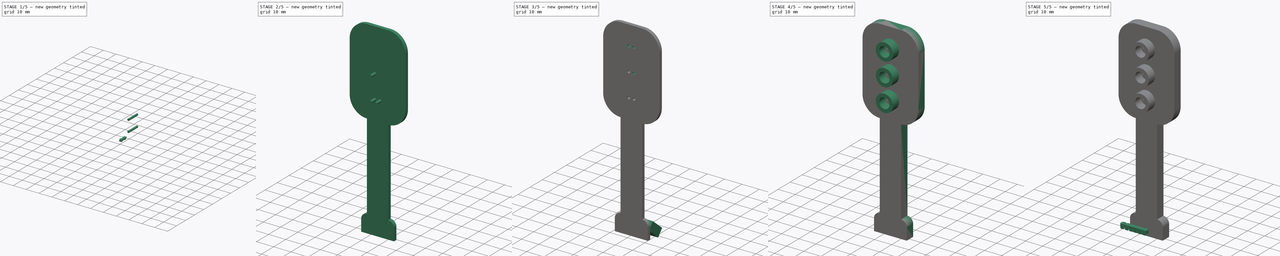
[diagram: build sequence overview — one tinted view per stage of 5, left to right]
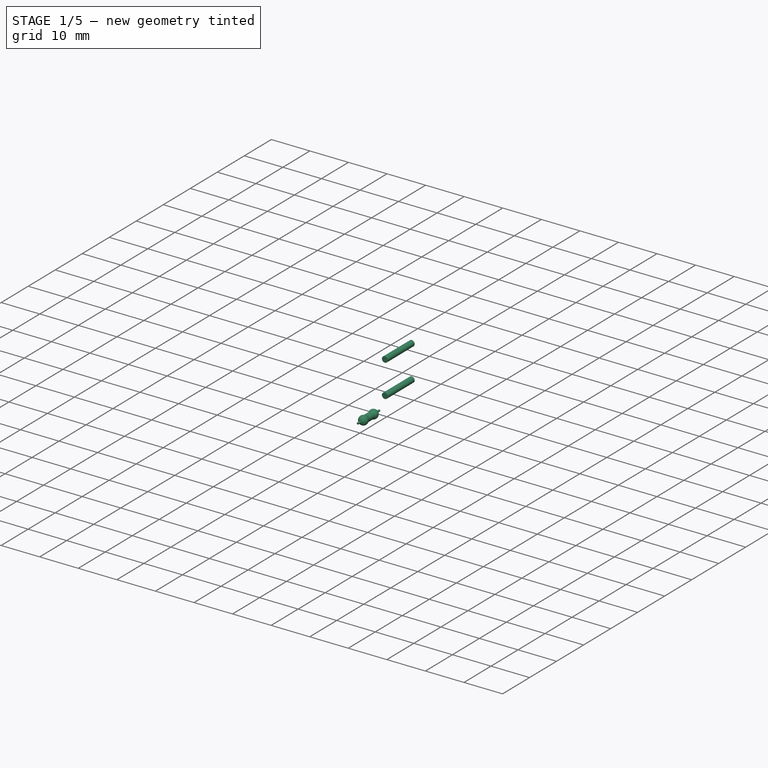
[diagram: stage 1 of 5 — iso view after this stage's code; geometry added in this stage tinted green]
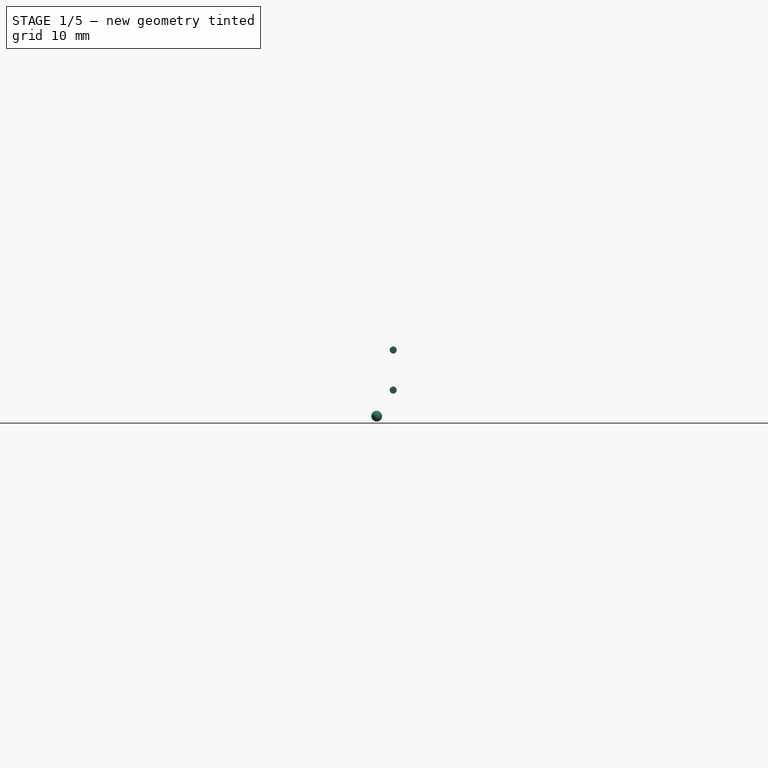
[diagram: stage 1 of 5 — front view after this stage's code; geometry added in this stage tinted green]
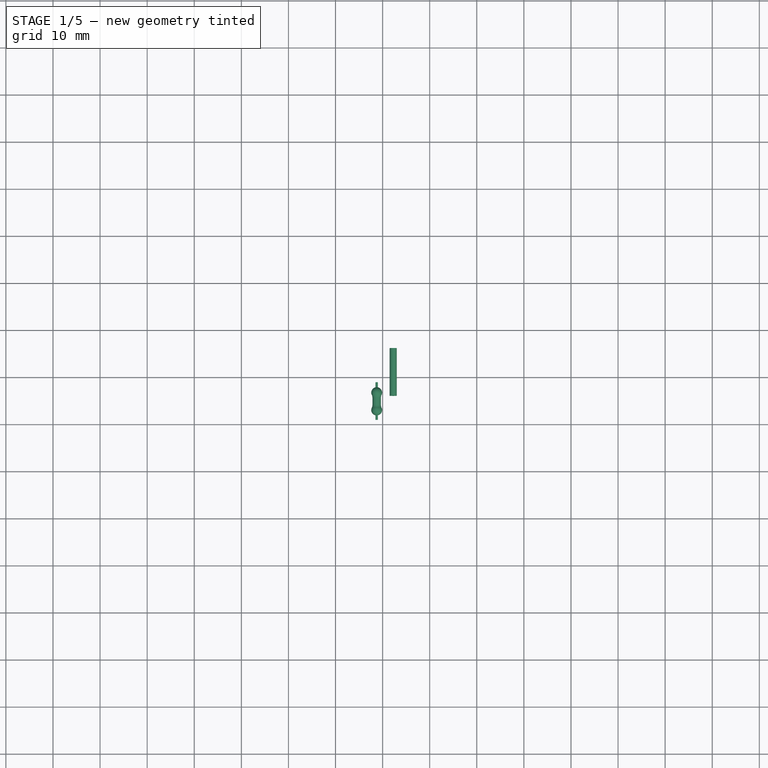
[diagram: stage 1 of 5 — top view after this stage's code; geometry added in this stage tinted green]
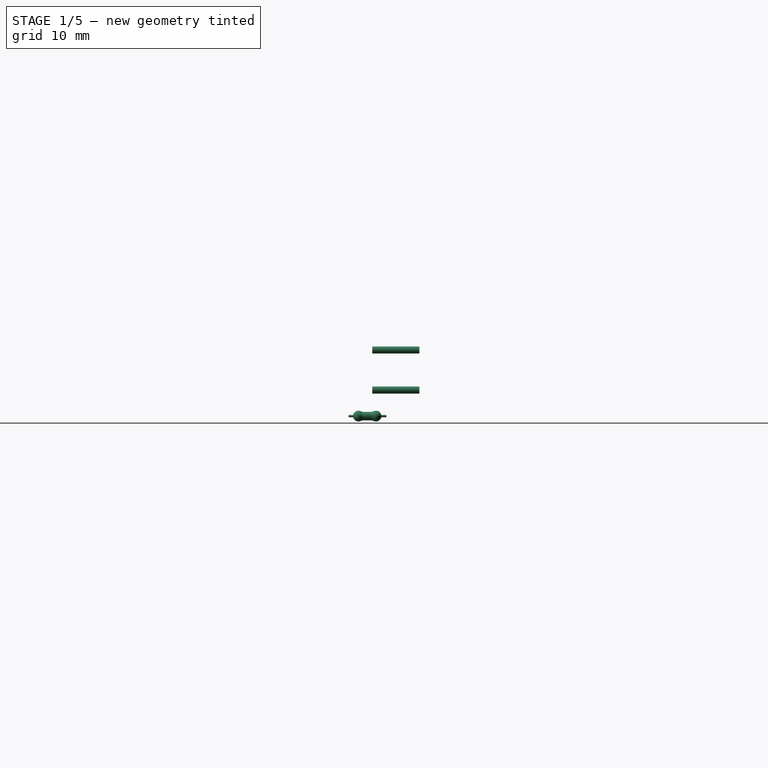
[diagram: stage 1 of 5 — right view after this stage's code; geometry added in this stage tinted green]
FCSTD DOCUMENT  (FreeCAD 0.18R16131 (Git))
Label: Semaforo
License: Public Domain
LicenseURL: http://en.wikipedia.org/wiki/Public_domain
objects: Part::Feature×19, Part::Part2DObjectPython×15, Part::Cut×8, Part::Extrusion×8, Part::MultiFuse×7, App::DocumentObjectGroup×7, Part::Box×3, Sketcher::SketchObject×2, PartDesign::Pad×2, PartDesign::Body×2, Part::Cylinder×2
note: 70 computed .brp shape members not serialized (recipe doc carries the construction recipe); baked Part::Feature solids carry a one-line shape summary decoded from their .brp

FEATURE [Part::Feature] Fusion016004001001003003001  label="Cuerpo con agujeros resistencia"
  shape: bbox 32.4 x 10.3 x 109.8 mm, 129 faces (baked)
FEATURE [Part::Feature] Body002004  label="Led ambar"
  Placement = pos=(6,-5,84.7) rot=(0,0,1;3.14159rad)
  shape: bbox 5.425 x 8.65 x 5.85 mm, 7 faces (baked)
FEATURE [Part::Feature] Body002005  label="Led verde"
  Placement = pos=(6,-5,71.3) rot=(0,0,1;3.14159rad)
  shape: bbox 5.425 x 8.65 x 5.85 mm, 7 faces (baked)
FEATURE [App::DocumentObjectGroup] Group005  label="Led"
  Group = -> [Body002001,Body002004,Body002005]
FEATURE [Part::Extrusion] Extrude003
  Base = -> Circle003
  Dir = (0,1,0)
  DirMode = 2
  FaceMakerClass = Part::FaceMakerBullseye
  LengthFwd = 10
  LengthRev = 0
  Placement = pos=(0,-9,0) rot=(0,0,1;0rad)
  Solid = false
  Symmetric = false
FEATURE [Part::Extrusion] Extrude002
  Base = -> Circle
  Dir = (0,1,0)
  DirMode = 2
  FaceMakerClass = Part::FaceMakerBullseye
  LengthFwd = 10
  LengthRev = 0
  Placement = pos=(0,-9,0) rot=(0,0,1;0rad)
  Solid = false
  Symmetric = false
FEATURE [App::DocumentObjectGroup] Group011  label="Cuerpo semaforo"
  Group = -> [Cut016,Fusion016004001001003003002]
FEATURE [Part::Feature] Fusion016004001001003003002001  label="cuerpo semaforo"
  shape: bbox 32.4 x 10.3 x 109.8 mm, 127 faces (baked)
FEATURE [Part::Box] Box  label="Cubo"
  AttacherType = Attacher::AttachEngine3D
  Height = 10
  Length = 10
  Placement = pos=(-4,9,0) rot=(0,0,1;0rad)
  Width = 10
FEATURE [Part::Box] Box010  label="Cubo010"
  AttacherType = Attacher::AttachEngine3D
  Height = 10
  Length = 10
  Placement = pos=(-4,-9,0) rot=(0,0,1;0rad)
  Width = 10
FEATURE [Part::MultiFuse] Fusion016004001001003003002002
  Refine = true
  Shapes = -> [Box,Box010]
FEATURE [Part::Cut] Cut
  Base = -> Fusion013001
  Refine = true
  Tool = -> Fusion016004001001003003002002
FEATURE [App::DocumentObjectGroup] Group  label="resistencia"
  Group = -> [Fusion014001,Cut]
FEATURE [App::DocumentObjectGroup] Group009  label="src"
  Group = -> [Group010,Group008,Group011,Group]
FEATURE [Part::Feature] Cut016004  label="Cuerpo Resistencia"
  Placement = pos=(3.5,4,10) rot=(1,0,0;1.5708rad)
  shape: bbox 2.3 x 2.3 x 8.02 mm, 9 faces (baked)
FEATURE [Part::Feature] Fusion014001001  label="Anillos resistencia"
  Placement = pos=(3.5,4,10) rot=(1,0,0;1.5708rad)
  shape: bbox 2.233 x 2.233 x 3.032 mm, 16 faces, 4 solids (baked)
FEATURE [App::DocumentObjectGroup] Group012  label="Resistencia"
  Group = -> [Cut016004,Fusion014001001]
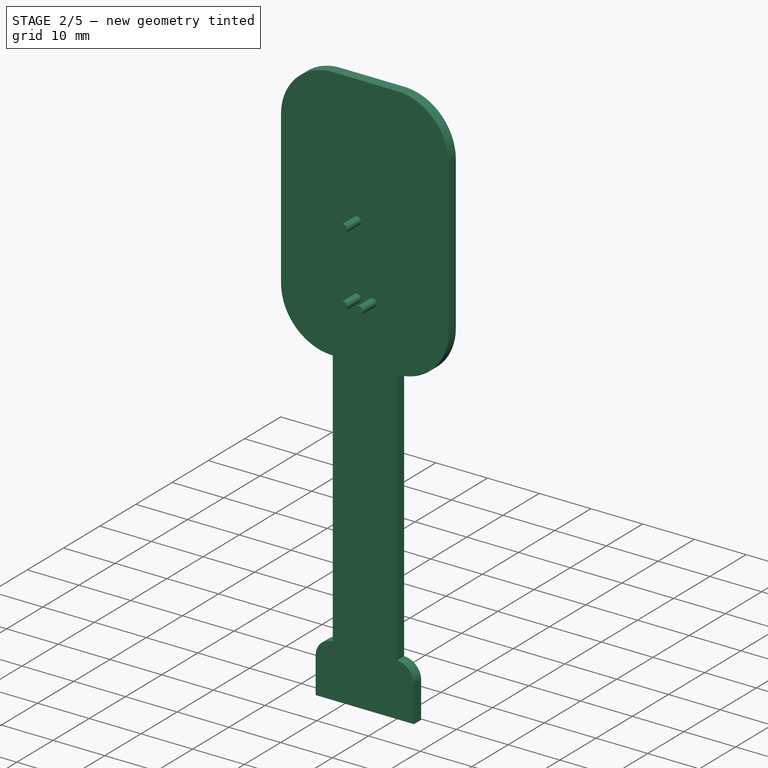
[diagram: stage 2 of 5 — iso view after this stage's code; geometry added in this stage tinted green]
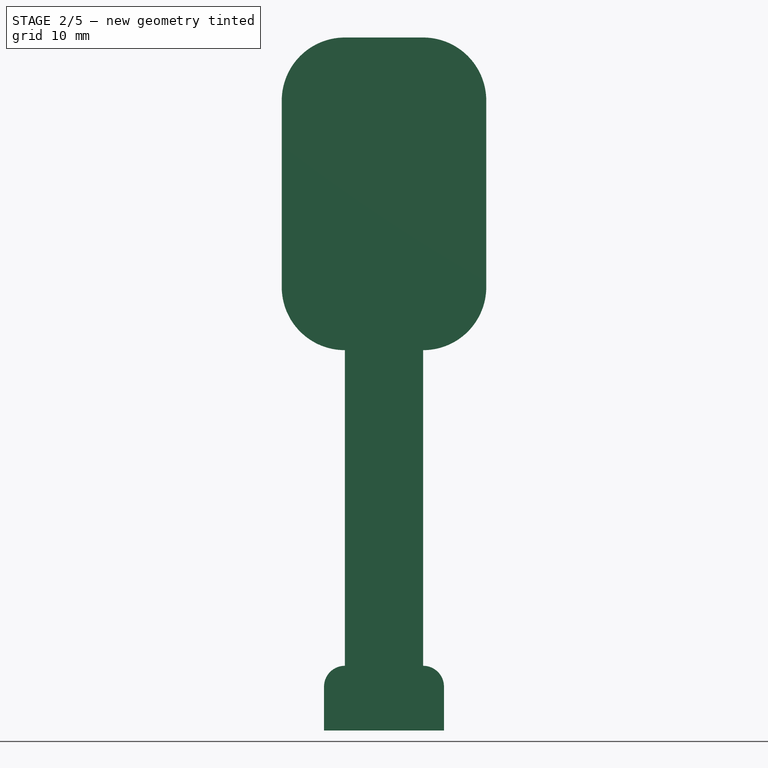
[diagram: stage 2 of 5 — front view after this stage's code; geometry added in this stage tinted green]
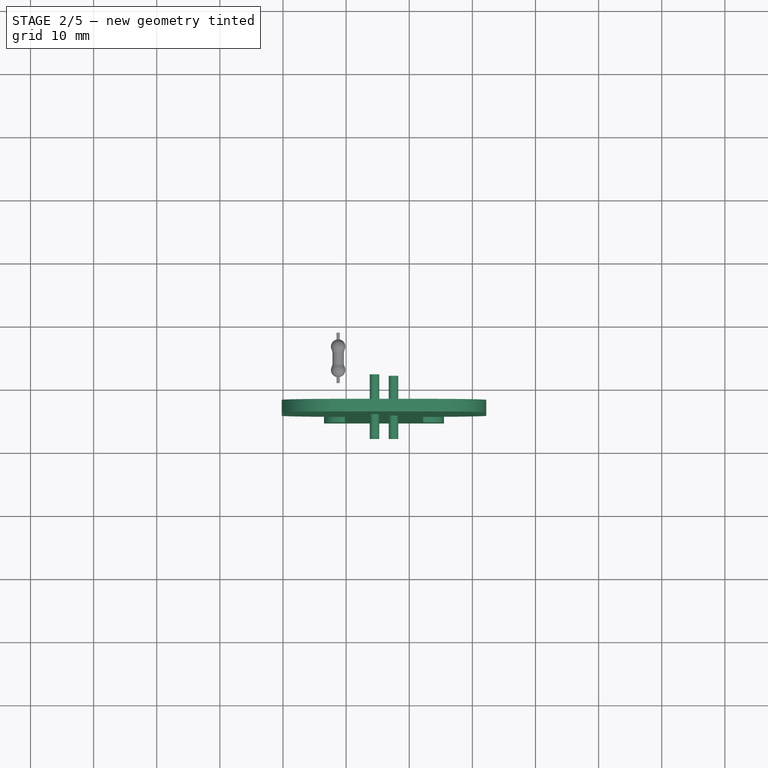
[diagram: stage 2 of 5 — top view after this stage's code; geometry added in this stage tinted green]
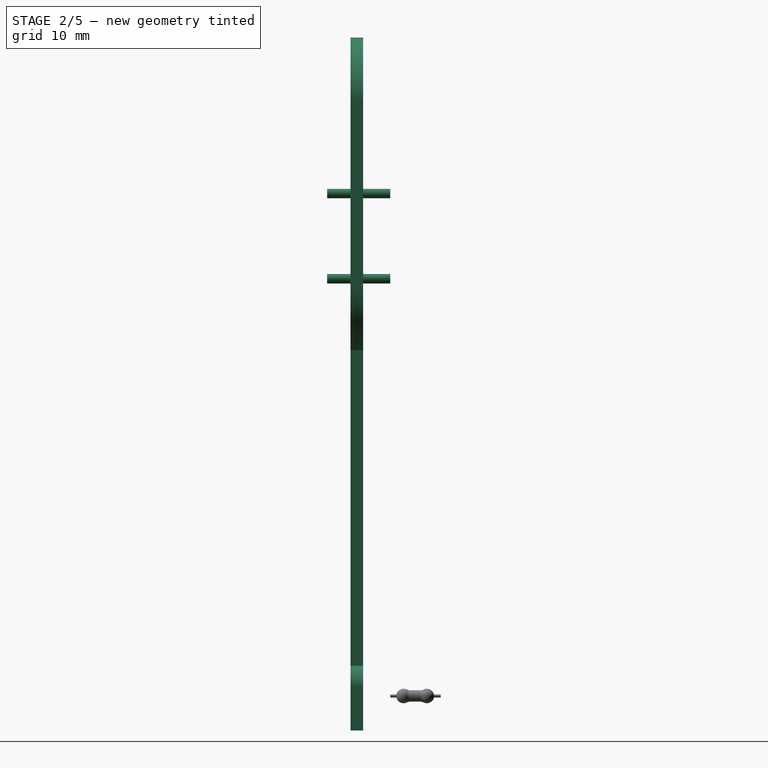
[diagram: stage 2 of 5 — right view after this stage's code; geometry added in this stage tinted green]
FEATURE [PartDesign::Body] Body002002  label="Trasera"
  Group = -> [Sketch023,Pad002]
  Origin = -> Origin001
  Tip = -> Pad002
FEATURE [Sketcher::SketchObject] Sketch024  label="Sketch circuitos001"
  AttachmentOffset = pos=(1,0,6) rot=(1,0,0;1.5708rad)
  MapMode = 5
  Placement = pos=(1,0,6) rot=(1,0,0;1.5708rad)
  Support = -> [XY_Plane002]
  sketch-geometry (15):
    g0: LineSegment StartX=14.5 StartY=0.7 StartZ=0 EndX=14.5 EndY=-6.25 EndZ=0
    g1: LineSegment StartX=14.5 StartY=-6.25 StartZ=0 EndX=-4.5 EndY=-6.25 EndZ=0
    g2: LineSegment StartX=-4.5 StartY=-6.25 StartZ=0 EndX=-4.5 EndY=0.7 EndZ=0
    g3: ArcOfCircle CenterX=-1.2 CenterY=0.7 CenterZ=0 NormalX=0 NormalY=0 NormalZ=1 AngleXU=0 Radius=3.3 StartAngle=1.5708 EndAngle=3.14159
    g4: ArcOfCircle CenterX=11.2 CenterY=0.7 CenterZ=0 NormalX=0 NormalY=0 NormalZ=1 AngleXU=0 Radius=3.3 StartAngle=0 EndAngle=1.5708
    g5: LineSegment StartX=-1.2 StartY=4 StartZ=0 EndX=-1.2 EndY=54 EndZ=0
    g6: LineSegment StartX=-1.2 StartY=103.53 StartZ=0 EndX=11.2 EndY=103.53 EndZ=0
    g7: LineSegment StartX=21.2 StartY=93.53 StartZ=0 EndX=21.2 EndY=64 EndZ=0
    g8: LineSegment StartX=-11.2 StartY=64 StartZ=0 EndX=-11.2 EndY=93.53 EndZ=0
    g9: ArcOfCircle CenterX=11.2 CenterY=93.53 CenterZ=0 NormalX=0 NormalY=0 NormalZ=1 AngleXU=0 Radius=10 StartAngle=0 EndAngle=1.5708
    g10: ArcOfCircle CenterX=-1.2 CenterY=93.53 CenterZ=0 NormalX=0 NormalY=0 NormalZ=1 AngleXU=0 Radius=10 StartAngle=1.5708 EndAngle=3.14159
    g11: ArcOfCircle CenterX=-1.2 CenterY=64 CenterZ=0 NormalX=0 NormalY=0 NormalZ=1 AngleXU=0 Radius=10 StartAngle=3.14159 EndAngle=4.71239
    g12: ArcOfCircle CenterX=11.2 CenterY=64 CenterZ=0 NormalX=0 NormalY=0 NormalZ=1 AngleXU=0 Radius=10 StartAngle=4.71239 EndAngle=6.28319
    g13: LineSegment [constr] StartX=-1.2 StartY=4 StartZ=0 EndX=11.2 EndY=4 EndZ=0
    g14: LineSegment StartX=11.2 StartY=54 StartZ=0 EndX=11.2 EndY=4 EndZ=0
  constraints (43):
    c: Coincident(g0,g1)
    c: Coincident(g1,g2)
    c: Vertical(g0)
    c: Vertical(g2)
    c: Horizontal(g1)
    c: DistanceX(g1,g0) = 19
    c: DistanceX(g1,g-1) = 4.5
    c: Coincident(g4,g13)
    c: Coincident(g5,g3)
    c: Coincident(g13,g3)
    c: Horizontal(g13)
    c: Perpendicular(g3,g5)
    c: Tangent(g0,g4) = 1.5708
    c: Tangent(g2,g3) = 1.5708
    c: Coincident(g14,g4)
    c: Vertical(g14)
    c: Vertical(g5)
    c: Perpendicular(g4,g14)
    c: DistanceY(g-1,g3) = 4
    c: Coincident(g12,g14)
    c: Vertical(g7)
    c: Coincident(g5,g11)
    c: Vertical(g8)
    c: Tangent(g8,g11) = 1.5708
    c: Horizontal(g6)
    c: Tangent(g6,g9) = 1.5708
    c: Tangent(g6,g10) = 1.5708
    c: Tangent(g8,g10) = 1.5708
    c: Tangent(g7,g9) = 1.5708
    c: DistanceY(g3,g5) = 50
    c: Radius(g10) = 10
    c: DistanceX(g11,g12) = 12.4
    c: DistanceY(g0,g4) = 10.25
    c: Equal(g7,g8)
    c: DistanceY(g7,g7) = 29.53
    c: Equal(g10,g9)
    c: Equal(g9,g12)
    c: Equal(g12,g11)
    c: Radius(g4) = 3.3
    c: Radius(g3) = 3.3
    c: DistanceX(g12,g7) = 10
    c: DistanceY(g12,g7) = 10
    c: Coincident(g7,g12)
FEATURE [PartDesign::Pad] Pad003
  Length = 2
  Length2 = 100
  Profile = -> Sketch024
  Refine = true
  Type = 0
FEATURE [Part::Extrusion] Extrude007
  Base = -> Circle007
  Dir = (3e-16,1,-5e-16)
  DirMode = 2
  FaceMakerClass = Part::FaceMakerBullseye
  LengthFwd = 10
  LengthRev = 0
  Placement = pos=(0,-9,0) rot=(0,0,1;0rad)
  Solid = true
  Symmetric = false
FEATURE [Part::Extrusion] Extrude008
  Base = -> Circle008
  Dir = (0,1,2e-16)
  DirMode = 2
  FaceMakerClass = Part::FaceMakerBullseye
  LengthFwd = 10
  LengthRev = 0
  Placement = pos=(0,-9,0) rot=(0,0,1;0rad)
  Solid = true
  Symmetric = false
FEATURE [Part::Extrusion] Extrude009
  Base = -> Circle009
  Dir = (0,1,2e-16)
  DirMode = 2
  FaceMakerClass = Part::FaceMakerBullseye
  LengthFwd = 10
  LengthRev = 0
  Placement = pos=(0,-9,0) rot=(0,0,1;0rad)
  Solid = true
  Symmetric = false
FEATURE [Part::Cut] Cut013
  Base = -> Body002003
  Refine = true
  Tool = -> Extrude002
FEATURE [Part::Cut] Cut014  label="agujeros resistencia"
  Base = -> Cut013
  Refine = true
  Tool = -> Extrude003
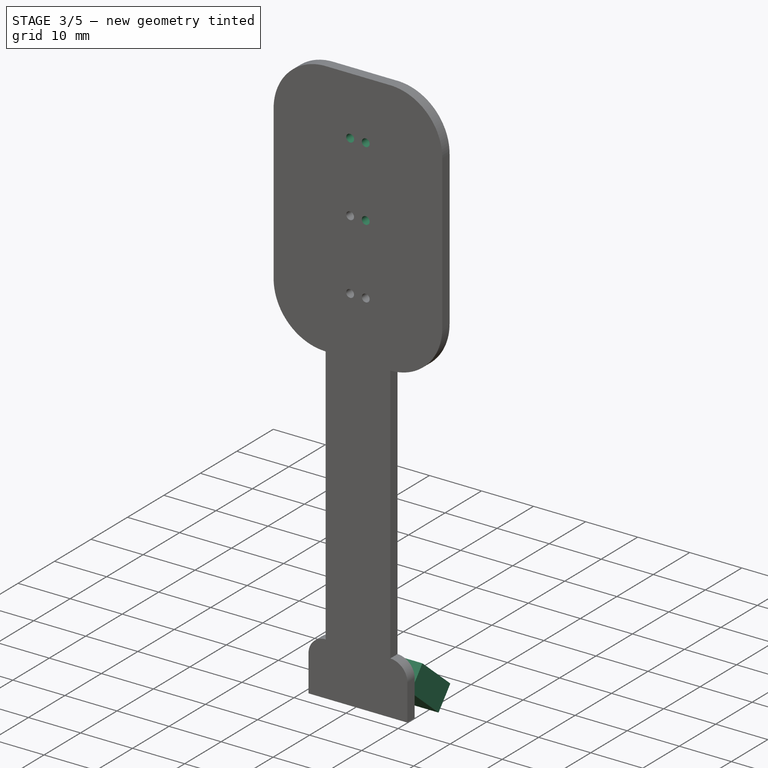
[diagram: stage 3 of 5 — iso view after this stage's code; geometry added in this stage tinted green]
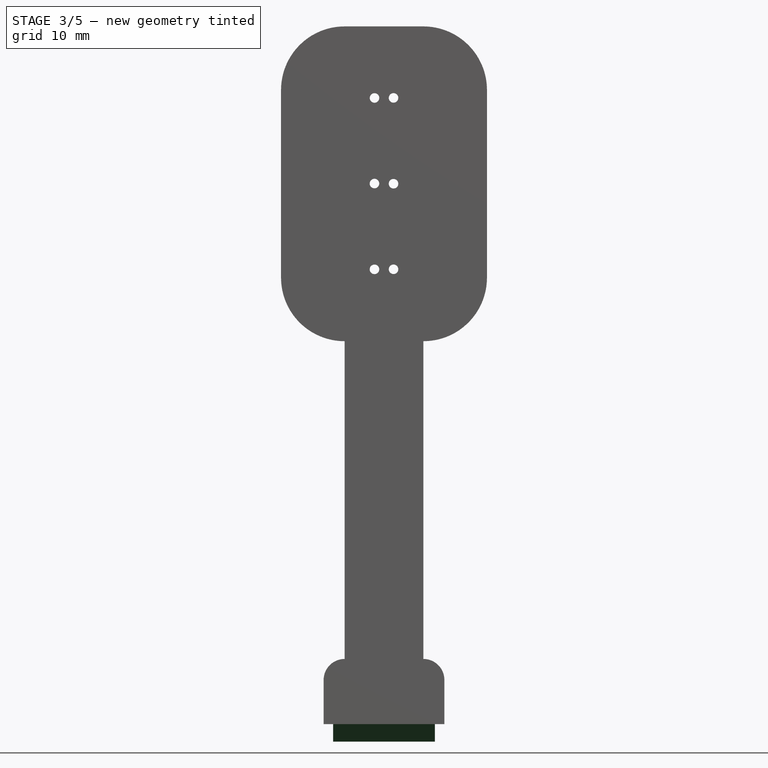
[diagram: stage 3 of 5 — front view after this stage's code; geometry added in this stage tinted green]
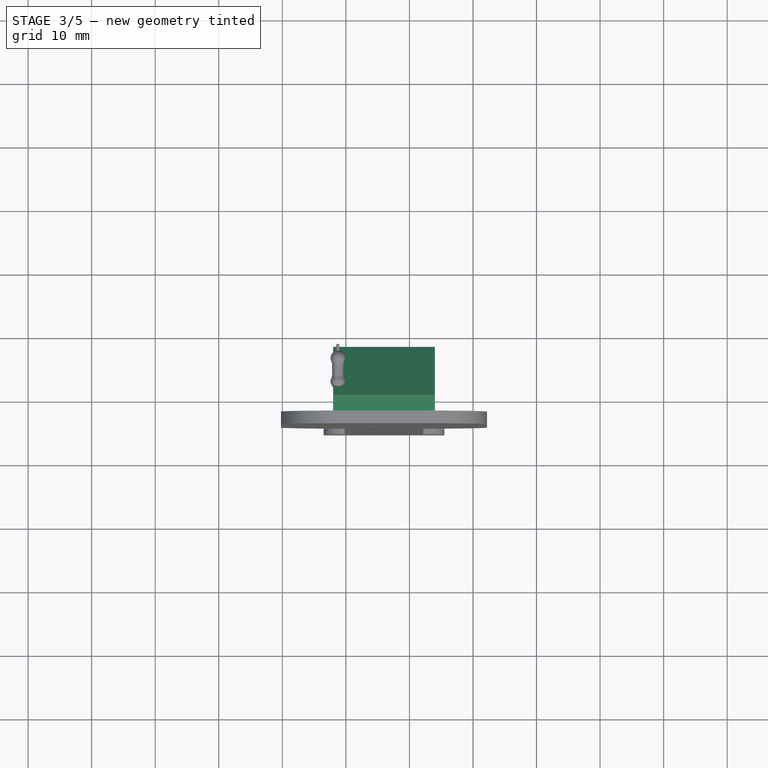
[diagram: stage 3 of 5 — top view after this stage's code; geometry added in this stage tinted green]
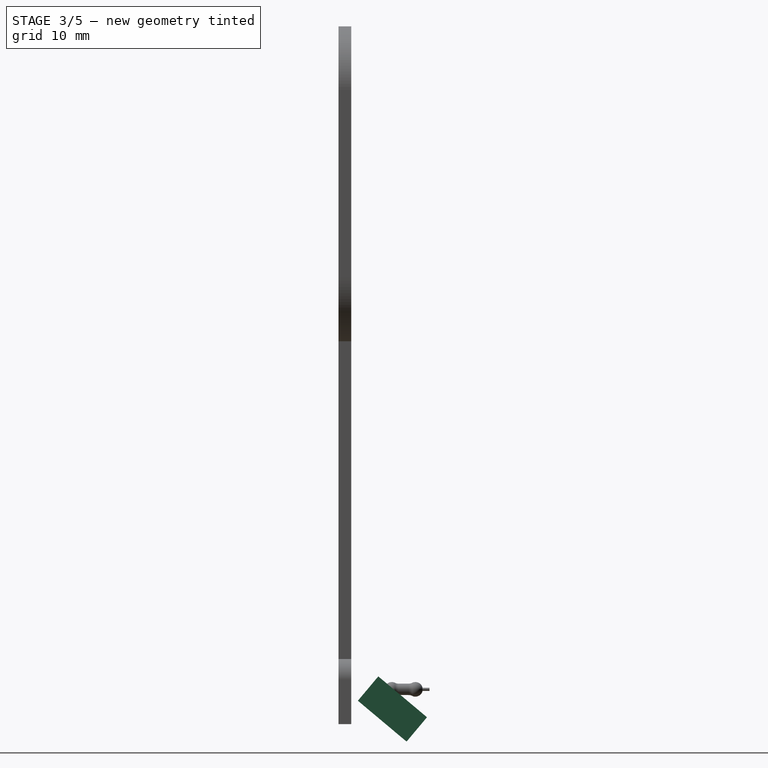
[diagram: stage 3 of 5 — right view after this stage's code; geometry added in this stage tinted green]
FEATURE [PartDesign::Body] Body002003  label="frontal"
  Group = -> [Sketch024,Pad003]
  Origin = -> Origin002
  Placement = pos=(0,-3.3,0) rot=(0,0,1;0rad)
  Tip = -> Pad003
FEATURE [Part::Box] Box009  label="Cubo009"
  AttacherType = Attacher::AttachEngine3D
  Height = 10
  Length = 16
  Placement = pos=(-2,5.4,-3) rot=(1,0,0;0.872665rad)
  Width = 5
FEATURE [Part::Part2DObjectPython] Circle004  # Draft 2D object (typed FeaturePython)
  FirstAngle = 0
  LastAngle = 0
  MakeFace = true
  Placement = pos=(7.5,-2.05e-14,98.28) rot=(-1,0,0;1.5708rad)
  Radius = 0.75
FEATURE [Part::Part2DObjectPython] Circle005  # Draft 2D object (typed FeaturePython)
  FirstAngle = 0
  LastAngle = 0
  MakeFace = true
  Placement = pos=(4.50708,-2e-14,98.2717) rot=(-1,0,0;1.5708rad)
  Radius = 0.75
FEATURE [Part::Part2DObjectPython] Circle006  # Draft 2D object (typed FeaturePython)
  FirstAngle = 0
  LastAngle = 0
  MakeFace = true
  Placement = pos=(7.5,-1.7e-14,84.78) rot=(-1,0,0;1.5708rad)
  Radius = 0.75
FEATURE [Part::Part2DObjectPython] Circle007  # Draft 2D object (typed FeaturePython)
  FirstAngle = 0
  LastAngle = 0
  MakeFace = true
  Placement = pos=(7.50082,-1.48e-14,71.3158) rot=(0,0.707107,0.707107;3.14159rad)
  Radius = 0.75
FEATURE [Part::Part2DObjectPython] Circle008  # Draft 2D object (typed FeaturePython)
  FirstAngle = 0
  LastAngle = 0
  MakeFace = true
  Placement = pos=(4.49942,-1.7e-14,84.807) rot=(-1,0,0;1.5708rad)
  Radius = 0.75
FEATURE [Part::Part2DObjectPython] Circle009  # Draft 2D object (typed FeaturePython)
  FirstAngle = 0
  LastAngle = 0
  MakeFace = true
  Placement = pos=(4.49942,-1.4e-14,71.307) rot=(-1,0,0;1.5708rad)
  Radius = 0.75
FEATURE [Part::Part2DObjectPython] Line008  # Draft 2D object (typed FeaturePython)
  ChamferSize = 0
  Closed = false
  End = (4.49942,-1.45e-14,71.307)
  FilletRadius = 0
  Length = 13.5
  MakeFace = true
  Placement = pos=(4.49942,-1.75e-14,84.807) rot=(-1,0,0;1.5708rad)
  Points = (2) [(0,0,0),(7.99361e-15,13.5,-3.15544e-30)]
  Start = (4.49942,-1.75e-14,84.807)
  Subdivisions = 0
FEATURE [Part::Extrusion] Extrude004
  Base = -> Circle004
  Dir = (0,1,2e-16)
  DirMode = 2
  FaceMakerClass = Part::FaceMakerBullseye
  LengthFwd = 10
  LengthRev = 0
  Placement = pos=(0,-9,0) rot=(0,0,1;0rad)
  Solid = true
  Symmetric = false
FEATURE [Part::Extrusion] Extrude005
  Base = -> Circle005
  Dir = (0,1,2e-16)
  DirMode = 2
  FaceMakerClass = Part::FaceMakerBullseye
  LengthFwd = 10
  LengthRev = 0
  Placement = pos=(0,-9,0) rot=(0,0,1;0rad)
  Solid = true
  Symmetric = false
FEATURE [Part::Extrusion] Extrude006
  Base = -> Circle006
  Dir = (0,1,2e-16)
  DirMode = 2
  FaceMakerClass = Part::FaceMakerBullseye
  LengthFwd = 10
  LengthRev = 0
  Placement = pos=(0,-9,0) rot=(0,0,1;0rad)
  Solid = true
  Symmetric = false
FEATURE [Part::MultiFuse] Fusion016004001001002  label="taladros led"
  Refine = true
  Shapes = -> [Extrude009,Extrude008,Extrude007,Extrude006,Extrude005,Extrude004]
FEATURE [Part::Cut] Cut015  label="agujeros led"
  Base = -> Cut014
  Refine = true
  Tool = -> Fusion016004001001002
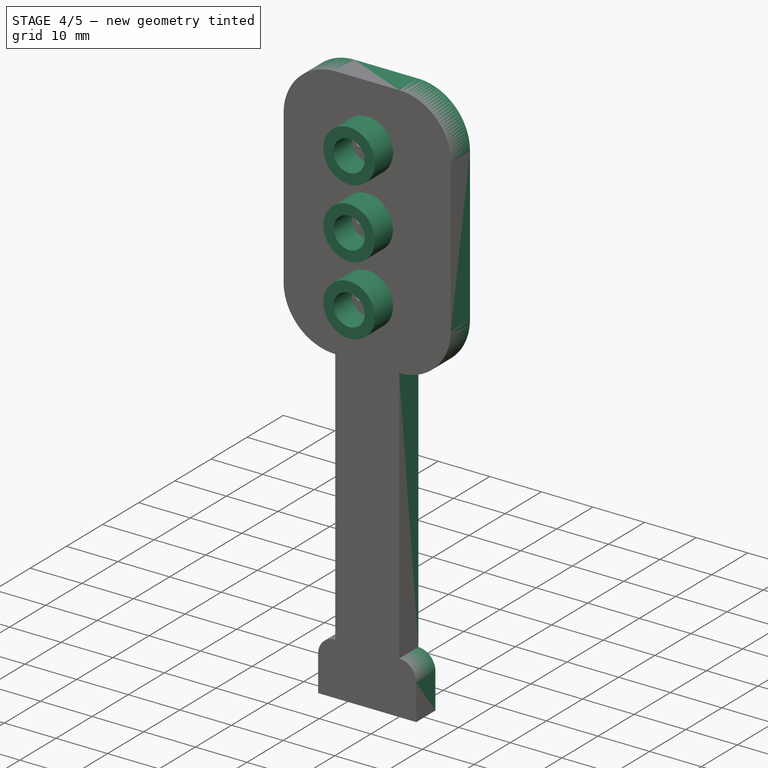
[diagram: stage 4 of 5 — iso view after this stage's code; geometry added in this stage tinted green]
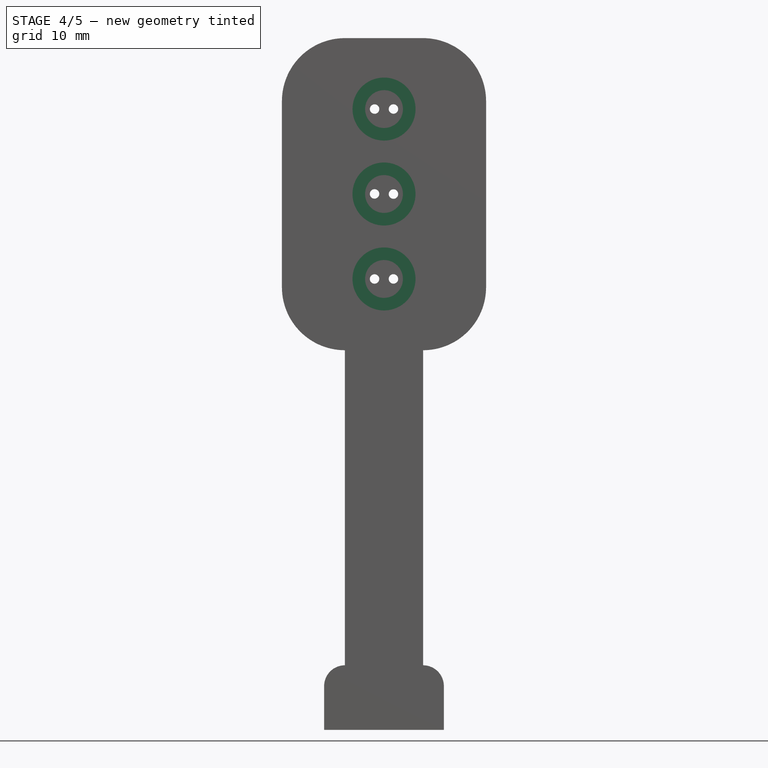
[diagram: stage 4 of 5 — front view after this stage's code; geometry added in this stage tinted green]
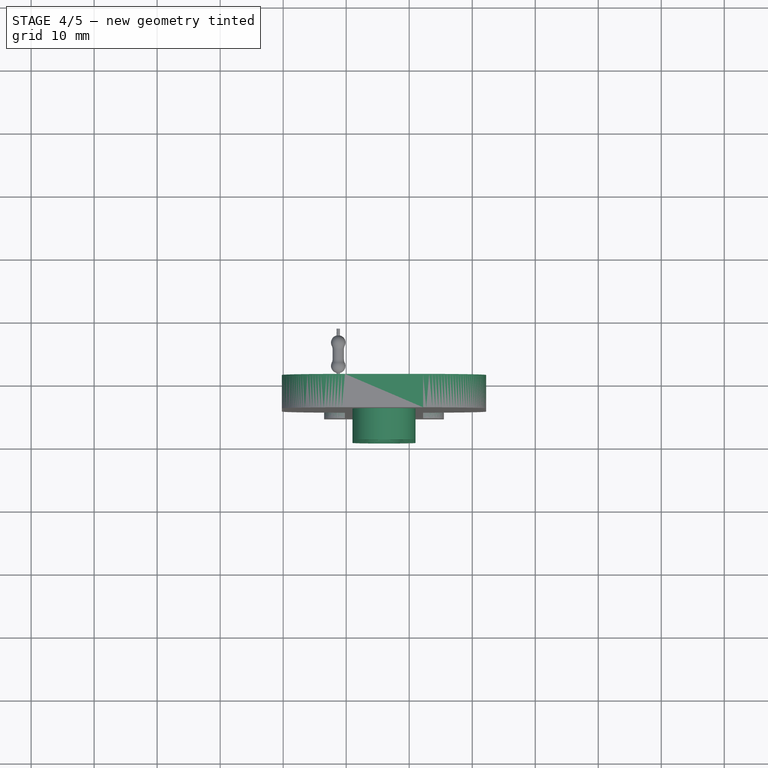
[diagram: stage 4 of 5 — top view after this stage's code; geometry added in this stage tinted green]
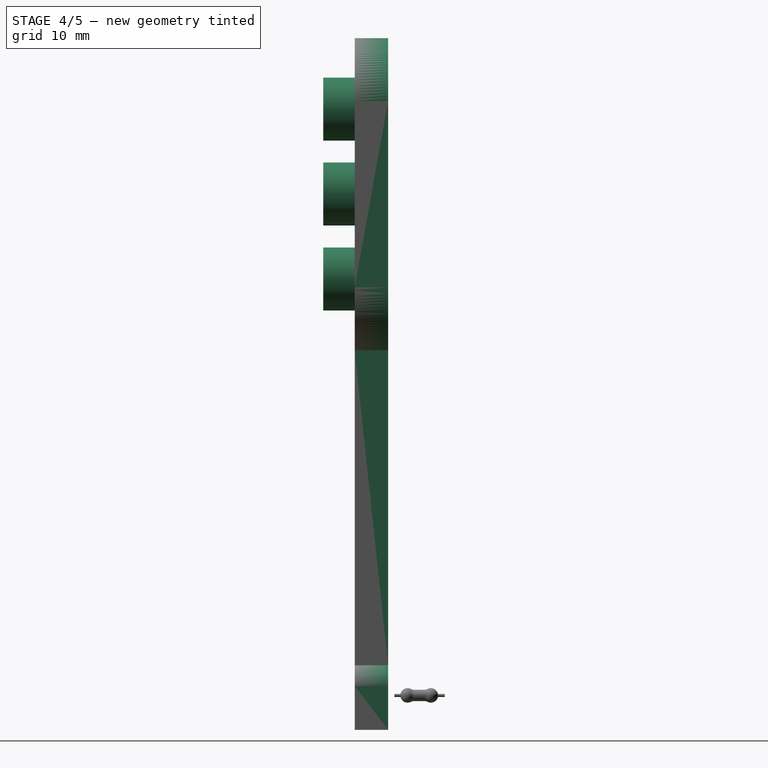
[diagram: stage 4 of 5 — right view after this stage's code; geometry added in this stage tinted green]
FEATURE [Part::Feature] Fusion016004001  label="Conector"
  Placement = pos=(6,-8.5,4.88) rot=(1,0,0;3.14159rad)
  shape: bbox 15.24 x 2.54 x 11.2 mm, 192 faces, 4 solids (baked)
FEATURE [Sketcher::SketchObject] Sketch023  label="Sketch circuitos"
  AttachmentOffset = pos=(1,0,6) rot=(1,0,0;1.5708rad)
  MapMode = 5
  Placement = pos=(1,0,6) rot=(1,0,0;1.5708rad)
  Support = -> [XY_Plane001]
  sketch-geometry (91):
    g0: LineSegment StartX=-3 StartY=-5.05 StartZ=0 EndX=-3 EndY=-2.3 EndZ=0
    g1: LineSegment StartX=-2.1 StartY=-2.3 StartZ=0 EndX=-2.1 EndY=0 EndZ=0
    g2: LineSegment StartX=14.5 StartY=0.7 StartZ=0 EndX=14.5 EndY=-6.25 EndZ=0
    g3: LineSegment StartX=14.5 StartY=-6.25 StartZ=0 EndX=-4.5 EndY=-6.25 EndZ=0
    g4: LineSegment StartX=-4.5 StartY=-6.25 StartZ=0 EndX=-4.5 EndY=0.7 EndZ=0
    g5: LineSegment StartX=-3 StartY=-5.05 StartZ=0 EndX=13 EndY=-5.05 EndZ=0
    g6: LineSegment StartX=13 StartY=-5.05 StartZ=0 EndX=13 EndY=-2.3 EndZ=0
    g7: LineSegment StartX=13 StartY=-2.3 StartZ=0 EndX=12.1 EndY=-2.3 EndZ=0
    g8: LineSegment StartX=-3 StartY=-2.3 StartZ=0 EndX=-2.1 EndY=-2.3 EndZ=0
    g9: LineSegment StartX=12.1 StartY=0 StartZ=0 EndX=12.1 EndY=-2.3 EndZ=0
    g10: LineSegment StartX=10.6 StartY=1e-16 StartZ=0 EndX=10.6 EndY=-2.3 EndZ=0
    g11: LineSegment StartX=9.6 StartY=2e-16 StartZ=0 EndX=9.6 EndY=-2.3 EndZ=0
    g12: LineSegment StartX=8.1 StartY=0 StartZ=0 EndX=8.1 EndY=-2.3 EndZ=0
    g13: LineSegment StartX=7.1 StartY=2e-16 StartZ=0 EndX=7.1 EndY=-2.3 EndZ=0
    g14: LineSegment StartX=5.6 StartY=0 StartZ=0 EndX=5.6 EndY=-2.3 EndZ=0
    g15: LineSegment StartX=5.6 StartY=-2.3 StartZ=0 EndX=-0.6 EndY=-2.3 EndZ=0
    g16: LineSegment StartX=8.1 StartY=-2.3 StartZ=0 EndX=7.1 EndY=-2.3 EndZ=0
    g17: LineSegment StartX=10.6 StartY=-2.3 StartZ=0 EndX=9.6 EndY=-2.3 EndZ=0
    g18: LineSegment [constr] StartX=13 StartY=-5.05 StartZ=0 EndX=14.5 EndY=-5.05 EndZ=0
    g19: LineSegment [constr] StartX=-3 StartY=-5.05 StartZ=0 EndX=-4.5 EndY=-5.05 EndZ=0
    g20: ArcOfCircle CenterX=-1.2 CenterY=0.7 CenterZ=0 NormalX=0 NormalY=0 NormalZ=1 AngleXU=0 Radius=3.3 StartAngle=1.5708 EndAngle=3.14159
    g21: ArcOfCircle CenterX=11.2 CenterY=0.7 CenterZ=0 NormalX=0 NormalY=0 NormalZ=1 AngleXU=0 Radius=3.3 StartAngle=0 EndAngle=1.5708
    g22: LineSegment StartX=-1.2 StartY=4 StartZ=0 EndX=-1.2 EndY=54 EndZ=0
    g23: LineSegment [constr] StartX=5 StartY=54 StartZ=0 EndX=5 EndY=103.53 EndZ=0
    g24: LineSegment StartX=-1.2 StartY=103.53 StartZ=0 EndX=11.2 EndY=103.53 EndZ=0
    g25: LineSegment StartX=21.2 StartY=93.53 StartZ=0 EndX=21.2 EndY=64 EndZ=0
    g26: LineSegment StartX=-11.2 StartY=64 StartZ=0 EndX=-11.2 EndY=93.53 EndZ=0
    g27: ArcOfCircle CenterX=11.2 CenterY=93.53 CenterZ=0 NormalX=0 NormalY=0 NormalZ=1 AngleXU=0 Radius=10 StartAngle=0 EndAngle=1.5708
    g28: ArcOfCircle CenterX=-1.2 CenterY=93.53 CenterZ=0 NormalX=0 NormalY=0 NormalZ=1 AngleXU=0 Radius=10 StartAngle=1.5708 EndAngle=3.14159
    g29: ArcOfCircle CenterX=-1.2 CenterY=64 CenterZ=0 NormalX=0 NormalY=0 NormalZ=1 AngleXU=0 Radius=10 StartAngle=3.14159 EndAngle=4.71239
    g30: ArcOfCircle CenterX=11.2 CenterY=64 CenterZ=0 NormalX=0 NormalY=0 NormalZ=1 AngleXU=0 Radius=10 StartAngle=4.71239 EndAngle=6.28319
    g31: LineSegment StartX=2.5 StartY=14 StartZ=0 EndX=2.5 EndY=4 EndZ=0
    g32: LineSegment StartX=2.5 StartY=4 StartZ=0 EndX=2 EndY=4 EndZ=0
    g33: LineSegment StartX=-9e-16 StartY=4 StartZ=0 EndX=-9e-16 EndY=14 EndZ=0
    g34: LineSegment StartX=0.5 StartY=4 StartZ=0 EndX=-9e-16 EndY=4 EndZ=0
    g35: LineSegment StartX=0.5 StartY=4 StartZ=0 EndX=-2.1 EndY=4e-16 EndZ=0
    g36: LineSegment StartX=-0.6 StartY=0 StartZ=0 EndX=2 EndY=4 EndZ=0
    g37: LineSegment StartX=-0.6 StartY=0 StartZ=0 EndX=-0.6 EndY=-2.3 EndZ=0
    g38: LineSegment StartX=5.6 StartY=0 StartZ=0 EndX=3.5 EndY=4 EndZ=0
    g39: LineSegment StartX=7.1 StartY=2e-16 StartZ=0 EndX=5 EndY=4 EndZ=0
    g40: LineSegment StartX=8.1 StartY=0 StartZ=0 EndX=6 EndY=4 EndZ=0
    g41: LineSegment StartX=9.6 StartY=2e-16 StartZ=0 EndX=7.5 EndY=4 EndZ=0
    g42: LineSegment StartX=10.6 StartY=1e-16 StartZ=0 EndX=8.5 EndY=4 EndZ=0
    g43: LineSegment StartX=12.1 StartY=0 StartZ=0 EndX=10 EndY=4 EndZ=0
    g44: LineSegment StartX=3.5 StartY=4 StartZ=0 EndX=3.5 EndY=54 EndZ=0
    g45: LineSegment StartX=5 StartY=4 StartZ=0 EndX=5 EndY=54 EndZ=0
    g46: LineSegment StartX=6 StartY=4 StartZ=0 EndX=6 EndY=54 EndZ=0
    g47: LineSegment StartX=7.5 StartY=4 StartZ=0 EndX=7.5 EndY=54 EndZ=0
    g48: LineSegment StartX=8.5 StartY=4 StartZ=0 EndX=8.5 EndY=54 EndZ=0
    g49: LineSegment StartX=10 StartY=4 StartZ=0 EndX=10 EndY=54 EndZ=0
    g50: LineSegment [constr] StartX=-1.2 StartY=4 StartZ=0 EndX=11.2 EndY=4 EndZ=0
    g51: LineSegment [constr] StartX=-2.1 StartY=-2.3 StartZ=0 EndX=13 EndY=-2.3 EndZ=0
    g52: LineSegment [constr] StartX=-2.1 StartY=0 StartZ=0 EndX=12.1 EndY=0 EndZ=0
    g53: LineSegment StartX=11.2 StartY=54 StartZ=0 EndX=11.2 EndY=4 EndZ=0
    g54: LineSegment [constr] StartX=-1.2 StartY=0.7 StartZ=0 EndX=11.2 EndY=0.7 EndZ=0
    g55: LineSegment [constr] StartX=-1.2 StartY=64 StartZ=0 EndX=11.2 EndY=64 EndZ=0
    g56: LineSegment [constr] StartX=-1.2 StartY=54 StartZ=0 EndX=5 EndY=54 EndZ=0
    g57: LineSegment StartX=0.5 StartY=14 StartZ=0 EndX=0.5 EndY=54 EndZ=0
    g58: LineSegment StartX=2 StartY=14 StartZ=0 EndX=2 EndY=54 EndZ=0
    g59: LineSegment StartX=2 StartY=14 StartZ=0 EndX=2.5 EndY=14 EndZ=0
    g60: LineSegment StartX=2 StartY=54 StartZ=0 EndX=4.25 EndY=64 EndZ=0
    g61: LineSegment StartX=0.5 StartY=54 StartZ=0 EndX=1.75 EndY=64 EndZ=0
    g62: LineSegment [constr] StartX=4.25 StartY=64 StartZ=0 EndX=5 EndY=64 EndZ=0
    g63: LineSegment StartX=5.75 StartY=68 StartZ=0 EndX=8.25 EndY=68 EndZ=0
    g64: LineSegment StartX=8.25 StartY=68 StartZ=0 EndX=8.25 EndY=64 EndZ=0
    g65: LineSegment StartX=5.75 StartY=64 StartZ=0 EndX=5.75 EndY=68 EndZ=0
    g66: LineSegment StartX=5.75 StartY=93.53 StartZ=0 EndX=8.25 EndY=93.53 EndZ=0
    g67: LineSegment [constr] StartX=5 StartY=64 StartZ=0 EndX=5.75 EndY=64 EndZ=0
    g68: LineSegment StartX=3.5 StartY=54 StartZ=0 EndX=5.75 EndY=64 EndZ=0
    g69: LineSegment StartX=5 StartY=54 StartZ=0 EndX=8.25 EndY=64 EndZ=0
    g70: LineSegment [constr] StartX=5 StartY=54 StartZ=0 EndX=11.2 EndY=54 EndZ=0
    g71: LineSegment StartX=1.75 StartY=64 StartZ=0 EndX=1.75 EndY=93.53 EndZ=0
    g72: LineSegment StartX=4.25 StartY=93.53 StartZ=0 EndX=4.25 EndY=64 EndZ=0
    g73: LineSegment StartX=-9e-16 StartY=14 StartZ=0 EndX=0.5 EndY=14 EndZ=0
    g74: LineSegment StartX=1.75 StartY=93.53 StartZ=0 EndX=4.25 EndY=93.53 EndZ=0
    g75: LineSegment StartX=5.75 StartY=93.53 StartZ=0 EndX=5.75 EndY=91.03 EndZ=0
    g76: LineSegment [constr] StartX=0.5 StartY=14 StartZ=0 EndX=2 EndY=14 EndZ=0
    g77: LineSegment [constr] StartX=5.75 StartY=91.03 StartZ=0 EndX=5.75 EndY=80.03 EndZ=0
    g78: LineSegment StartX=6 StartY=54 StartZ=0 EndX=9.75 EndY=64 EndZ=0
    g79: LineSegment StartX=9.75 StartY=64 StartZ=0 EndX=9.75 EndY=77.53 EndZ=0
    g80: LineSegment StartX=9.75 StartY=77.53 StartZ=0 EndX=5.75 EndY=77.53 EndZ=0
    g81: LineSegment StartX=11.75 StartY=80.03 StartZ=0 EndX=11.75 EndY=64.03 EndZ=0
    g82: LineSegment StartX=11.75 StartY=64.03 StartZ=0 EndX=7.5 EndY=54 EndZ=0
    g83: LineSegment StartX=5.75 StartY=80.03 StartZ=0 EndX=11.75 EndY=80.03 EndZ=0
    g84: LineSegment StartX=5.75 StartY=80.03 StartZ=0 EndX=5.75 EndY=77.53 EndZ=0
    g85: LineSegment StartX=8.5 StartY=54 StartZ=0 EndX=14.7 EndY=65.03 EndZ=0
    g86: LineSegment StartX=14.7 StartY=65.03 StartZ=0 EndX=14.7 EndY=91.03 EndZ=0
    g87: LineSegment StartX=8.25 StartY=93.53 StartZ=0 EndX=17.2 EndY=93.53 EndZ=0
    g88: LineSegment StartX=17.2 StartY=93.53 StartZ=0 EndX=17.2 EndY=64.53 EndZ=0
    g89: LineSegment StartX=17.2 StartY=64.53 StartZ=0 EndX=10 EndY=54 EndZ=0
    g90: LineSegment StartX=5.75 StartY=91.03 StartZ=0 EndX=14.7 EndY=91.03 EndZ=0
  constraints (259):
    c: Vertical(g0)
    c: Vertical(g1)
    c: Coincident(g2,g3)
    c: Coincident(g3,g4)
    c: Vertical(g2)
    c: Vertical(g4)
    c: DistanceY(g3,g0) = 1.2
    c: DistanceY(g0,g0) = 2.75
    c: Horizontal(g3)
    c: Coincident(g5,g0)
    c: Horizontal(g5)
    c: DistanceX(g5,g5) = 16
    c: Coincident(g6,g5)
    c: Vertical(g6)
    c: DistanceY(g6,g6) = 2.75
    c: Coincident(g7,g6)
    c: Horizontal(g7)
    c: Horizontal(g8)
    c: Vertical(g9)
    c: Vertical(g10)
    c: Coincident(g0,g8)
    c: Vertical(g11)
    c: Vertical(g12)
    c: Vertical(g13)
    c: Vertical(g14)
    c: Coincident(g13,g16)
    c: Horizontal(g16)
    c: Coincident(g12,g16)
    c: Coincident(g11,g17)
    c: Horizontal(g15)
    c: Equal(g14,g13)
    c: Equal(g13,g12)
    c: Equal(g12,g11)
    c: Equal(g11,g10)
    c: Equal(g10,g9)
    c: Coincident(g10,g17)
    c: Coincident(g7,g9)
    c: Coincident(g14,g15)
    c: DistanceX(g3,g2) = 19
    c: Coincident(g18,g5)
    c: PointOnObject(g18,g2)
    c: Horizontal(g18)
    c: Coincident(g19,g0)
    c: Horizontal(g19)
    c: Equal(g19,g18)
    c: PointOnObject(g19,g4)
    c: DistanceX(g3,g-1) = 4.5
    c: PointOnObject(g11,g51)
    c: Coincident(g1,g35)
    c: Coincident(g1,g8)
    c: Coincident(g15,g37)
    c: Coincident(g52,g1)
    c: Coincident(g52,g9)
    c: Horizontal(g52)
    c: Coincident(g14,g38)
    c: Coincident(g13,g39)
    c: Coincident(g12,g40)
    c: Horizontal(g17)
    c: Coincident(g11,g41)
    c: Coincident(g10,g42)
    c: Coincident(g9,g43)
    c: PointOnObject(g-1,g52)
    c: PointOnObject(g12,g51)
    c: Coincident(g36,g37)
    c: Vertical(g37)
    c: Coincident(g39,g45)
    c: Coincident(g40,g46)
    c: Coincident(g41,g47)
    c: Coincident(g42,g48)
    c: Coincident(g43,g49)
    c: Coincident(g21,g50)
    c: Coincident(g22,g20)
    c: Coincident(g50,g20)
    c: Horizontal(g50)
    c: Coincident(g51,g1)
    c: DistanceX(g1,g15) = 1.5
    c: DistanceX(g14,g13) = 1.5
    c: DistanceX(g12,g11) = 1.5
    c: DistanceX(g10,g7) = 1.5
    c: PointOnObject(g15,g51)
    c: DistanceX(g11,g10) = 1
    c: DistanceX(g13,g12) = 1
    c: Perpendicular(g20,g22)
    c: Tangent(g2,g21) = 1.5708
    c: Tangent(g4,g20) = 1.5708
    c: Coincident(g53,g21)
    c: Vertical(g53)
    c: Vertical(g22)
    c: Perpendicular(g21,g53)
    c: Coincident(g54,g20)
    c: Coincident(g54,g21)
    c: Horizontal(g54)
    c: DistanceX(g43,g21) = 1.2
    c: DistanceX(g20,g33) = 1.2
    c: Vertical(g33)
    c: Coincident(g59,g31)
    c: Vertical(g31)
    c: Coincident(g33,g34)
    c: Coincident(g34,g35)
    c: Horizontal(g34)
    c: Coincident(g32,g36)
    c: Coincident(g32,g31)
    c: Horizontal(g32)
    c: Coincident(g38,g44)
    c: Vertical(g44)
    c: Vertical(g45)
    c: Vertical(g46)
    c: Vertical(g47)
    c: Vertical(g48)
    c: Vertical(g49)
    c: PointOnObject(g33,g50)
    c: PointOnObject(g31,g50)
    c: PointOnObject(g38,g50)
    c: PointOnObject(g39,g50)
    c: PointOnObject(g40,g50)
    c: PointOnObject(g41,g50)
    c: PointOnObject(g42,g50)
    c: PointOnObject(g43,g50)
    c: DistanceY(g-1,g20) = 4
    c: DistanceX(g42,g43) = 1.5
    c: DistanceX(g40,g41) = 1.5
    c: DistanceX(g38,g39) = 1.5
    c: DistanceX(g41,g42) = 1
    c: DistanceX(g39,g40) = 1
    c: DistanceX(g31,g38) = 1
    c: DistanceX(g33,g59) = 2.5
    c: DistanceX(g15,g14) = 6.2
    c: Equal(g8,g7)
    c: DistanceY(g37,g37) = 2.3
    c: PointOnObject(g36,g52)
    c: Equal(g34,g32)
    c: Parallel(g35,g36)
    c: Tangent(g25,g30) = 1.5708
    c: Coincident(g30,g53)
    c: Vertical(g25)
    c: Perpendicular(g30,g53)
    c: Coincident(g22,g29)
    c: Perpendicular(g29,g22)
    c: Vertical(g26)
    c: Tangent(g26,g29) = 1.5708
    c: Equal(g29,g30)
    c: Coincident(g55,g29)
    c: Coincident(g55,g30)
    c: Horizontal(g55)
    c: Horizontal(g24)
    c: Tangent(g24,g27) = 1.5708
    c: Tangent(g24,g28) = 1.5708
    c: Tangent(g26,g28) = 1.5708
    c: Tangent(g25,g27) = 1.5708
    c: DistanceY(g22,g29) = 10
    c: Coincident(g56,g22)
    c: Horizontal(g56)
    c: Coincident(g23,g56)
    c: Vertical(g23)
    c: Vertical(g57)
    c: Vertical(g58)
    c: DistanceY(g33,g33) = 10
    c: Coincident(g59,g58)
    c: Horizontal(g59)
    c: DistanceX(g57,g58) = 1.5
    c: Coincident(g58,g60)
    c: DistanceY(g30,g62) = 10
    c: DistanceY(g20,g22) = 50
    c: PointOnObject(g62,g23)
    c: Coincident(g61,g57)
    c: PointOnObject(g58,g56)
    c: PointOnObject(g57,g56)
    c: Horizontal(g62)
    c: Coincident(g60,g62)
    c: DistanceY(g71,g24) = 10
    c: Coincident(g63,g64)
    c: Coincident(g65,g63)
    c: Horizontal(g63)
    c: Vertical(g64)
    c: Vertical(g65)
    c: Horizontal(g66)
    c: Coincident(g67,g62)
    c: PointOnObject(g44,g56)
    c: Coincident(g45,g23)
    c: Coincident(g68,g44)
    c: Coincident(g69,g45)
    c: Coincident(g69,g64)
    c: Coincident(g70,g45)
    c: Coincident(g70,g30)
    c: PointOnObject(g46,g70)
    c: PointOnObject(g47,g70)
    c: PointOnObject(g48,g70)
    c: PointOnObject(g49,g70)
    c: DistanceX(g72,g66) = 1.5
    c: Coincident(g71,g61)
    c: Vertical(g71)
    c: Coincident(g72,g60)
    c: DistanceX(g71,g72) = 2.5
    c: Radius(g28) = 10
    c: DistanceY(g71,g71) = 29.53
    c: Coincident(g6,g51)
    c: Coincident(g73,g33)
    c: Coincident(g73,g57)
    c: Horizontal(g73)
    c: PointOnObject(g23,g24)
    c: Symmetric(g72,g66,g23)
    c: PointOnObject(g71,g55)
    c: DistanceX(g63,g63) = 2.5
    c: DistanceY(g64,g64) = 4
    c: DistanceY(g83,g75) = 11
    c: Coincident(g65,g67)
    c: Coincident(g65,g68)
    c: Coincident(g74,g71)
    c: Coincident(g74,g72)
    c: Horizontal(g74)
    c: Coincident(g75,g66)
    c: Vertical(g75)
    c: Coincident(g76,g57)
    c: Coincident(g76,g58)
    c: Horizontal(g76)
    c: Equal(g59,g73)
    c: Vertical(g72)
    c: Vertical(g77)
    c: DistanceX(g66,g66) = 2.5
    c: Radius(g27) = 10
    c: Coincident(g78,g46)
    c: Coincident(g79,g78)
    c: Vertical(g79)
    c: Vertical(g81)
    c: Coincident(g81,g82)
    c: Coincident(g82,g47)
    c: DistanceX(g64,g78) = 1.5
    c: Coincident(g83,g81)
    c: Horizontal(g83)
    c: Symmetric(g60,g65,g62)
    c: Coincident(g84,g83)
    c: Coincident(g84,g80)
    c: Vertical(g84)
    c: DistanceY(g84,g84) = 2.5
    c: Coincident(g79,g80)
    c: Coincident(g77,g83)
    c: PointOnObject(g64,g55)
    c: Horizontal(g80)
    c: PointOnObject(g78,g55)
    c: DistanceX(g78,g81) = 2
    c: DistanceY(g81,g81) = 16
    c: Coincident(g85,g48)
    c: Coincident(g85,g86)
    c: Vertical(g86)
    c: Coincident(g66,g87)
    c: Horizontal(g87)
    c: Coincident(g87,g88)
    c: Vertical(g88)
    c: Coincident(g88,g89)
    c: Coincident(g89,g49)
    c: Coincident(g90,g75)
    c: Coincident(g90,g86)
    c: Horizontal(g90)
    c: DistanceX(g86,g87) = 2.5
    c: DistanceX(g87,g25) = 4
    c: Coincident(g75,g77)
    c: DistanceY(g75,g75) = 2.5
    c: DistanceY(g88,g88) = 29
    c: DistanceY(g86,g86) = 26
FEATURE [PartDesign::Pad] Pad002  label="extrusion circuitos"
  Length = 3.3
  Length2 = 100
  Profile = -> Sketch023
  Refine = true
  Type = 0
FEATURE [Part::Cut] Cut010  label="Rebaje conector"
  Base = -> Body002002
  Refine = true
  Tool = -> Box009
FEATURE [Part::Feature] Fusion016004001001  label="Conector001"
  Placement = pos=(6,-8.5,4.88) rot=(1,0,0;3.14159rad)
  shape: bbox 15.24 x 2.54 x 11.2 mm, 192 faces, 4 solids (baked)
FEATURE [Part::Feature] Fusion016004001001001  label="Conector002"
  Placement = pos=(6,-4.5,8.88) rot=(1,0,0;2.61799rad)
  shape: bbox 15.24 x 5.877 x 9.859 mm, 192 faces, 4 solids (baked)
FEATURE [Part::Cut] Cut011
  Base = -> Cut010
  Refine = true
  Tool = -> Fusion016004001001
FEATURE [Part::Part2DObjectPython] Line  # Draft 2D object (typed FeaturePython)
  ChamferSize = 0
  Closed = false
  End = (1.5,-3.1e-15,20)
  FilletRadius = 0
  Length = 1.5
  MakeFace = true
  Placement = pos=(3,-3.1e-15,20) rot=(-1,0,0;1.5708rad)
  Points = (2) [(0,0,0),(-1.5,0,-4.59243e-17)]
  Start = (3,-3.1e-15,20)
  Subdivisions = 0
FEATURE [Part::Part2DObjectPython] Line001  # Draft 2D object (typed FeaturePython)
  ChamferSize = 0
  Closed = false
  End = (1.5,-9e-16,10)
  FilletRadius = 0
  Length = 1.5
  MakeFace = true
  Placement = pos=(3,-9e-16,10) rot=(-1,0,0;1.5708rad)
  Points = (2) [(0,0,0),(-1.5,0,-4.59243e-17)]
  Start = (3,-9e-16,10)
  Subdivisions = 0
FEATURE [Part::Part2DObjectPython] Line002  # Draft 2D object (typed FeaturePython)
  ChamferSize = 0
  Closed = false
  End = (2.25,-3.1e-15,20)
  FilletRadius = 0
  Length = 10
  MakeFace = true
  Placement = pos=(2.25,-9e-16,10) rot=(-1,0,0;1.5708rad)
  Points = (2) [(0,0,0),(-8.88178e-16,-10,0)]
  Start = (2.25,-9e-16,10)
  Subdivisions = 0
FEATURE [Part::Part2DObjectPython] Circle  # Draft 2D object (typed FeaturePython)
  FirstAngle = 0
  LastAngle = 0
  MakeFace = true
  Placement = pos=(2.25,15,10.75) rot=(-1,0,0;1.5708rad)
  Radius = 0.75
FEATURE [Part::Part2DObjectPython] Circle003  # Draft 2D object (typed FeaturePython)
  FirstAngle = 0
  LastAngle = 0
  MakeFace = true
  Placement = pos=(2.25,15,19.25) rot=(-1,0,0;1.5708rad)
  Radius = 0.75
FEATURE [Part::Cut] Cut012  label="Agujeros conector"
  Base = -> Cut011
  Refine = true
  Tool = -> Fusion016004001001001
FEATURE [Part::Feature] Cut016001  label="Tapa led"
  shape: bbox 10 x 5 x 10 mm, 4 faces (baked)
FEATURE [Part::Feature] Fusion016002  label="Pines001"
  Placement = pos=(5.08,9e-16,0) rot=(0,0,1;0rad)
  shape: bbox 3.18 x 0.64 x 11.2 mm, 28 faces, 2 solids (baked)
FEATURE [App::DocumentObjectGroup] Group010  label="conector"
  Group = -> [Fusion,Fusion016002]
FEATURE [Part::Feature] Cut016002  label="Tapa led001"
  Placement = pos=(-0.00737123,0,-13.4781) rot=(0,0,1;0rad)
  shape: bbox 10 x 5 x 10 mm, 4 faces (baked)
FEATURE [Part::Feature] Cut016003  label="Tapa led002"
  Placement = pos=(-0.00696341,0,-26.9602) rot=(0,0,1;0rad)
  shape: bbox 10 x 5 x 10 mm, 4 faces (baked)
FEATURE [Part::MultiFuse] Fusion016004001001003  label="Tapas Led"
  Refine = true
  Shapes = -> [Cut016001,Cut016002,Cut016003]
FEATURE [Part::Part2DObjectPython] Line009  # Draft 2D object (typed FeaturePython)
  ChamferSize = 0
  Closed = false
  End = (7.5,-5.3,84.78)
  FilletRadius = 0
  Length = 3.0007
  MakeFace = true
  Placement = pos=(4.49942,-5.3,84.807) rot=(1,0,0;1.5708rad)
  Points = (2) [(0,0,0),(3.00058,-0.0270491,0)]
  Start = (4.49942,-5.3,84.807)
  Subdivisions = 0
  Support = -> [Cut015]
FEATURE [Part::Part2DObjectPython] Line010  # Draft 2D object (typed FeaturePython)
  ChamferSize = 0
  Closed = false
  End = (7.50082,-5.3,71.3158)
  FilletRadius = 0
  Length = 3.0014
  MakeFace = true
  Placement = pos=(4.49942,-5.3,71.307) rot=(1,0,0;1.5708rad)
  Points = (2) [(0,0,0),(3.00139,0.0087656,0)]
  Start = (4.49942,-5.3,71.307)
  Subdivisions = 0
  Support = -> [Cut015]
FEATURE [Part::Part2DObjectPython] Line011  # Draft 2D object (typed FeaturePython)
  ChamferSize = 0
  Closed = false
  End = (7.5,-5.3,98.28)
  FilletRadius = 0
  Length = 3.0007
  MakeFace = true
  Placement = pos=(4.49942,-5.3,98.307) rot=(1,0,0;1.5708rad)
  Points = (2) [(0,0,0),(3.00058,-0.0270491,0)]
  Start = (4.49942,-5.3,98.307)
  Subdivisions = 0
  Support = -> [Cut015]
FEATURE [App::DocumentObjectGroup] Group008  label="Lineas de apoyo"
  Group = -> [Line,Line001,Line002,Line008,Line009,Line010,Line011]
FEATURE [Part::MultiFuse] Fusion016004001001003002
  Refine = true
  Shapes = -> [Cut015,Cut012]
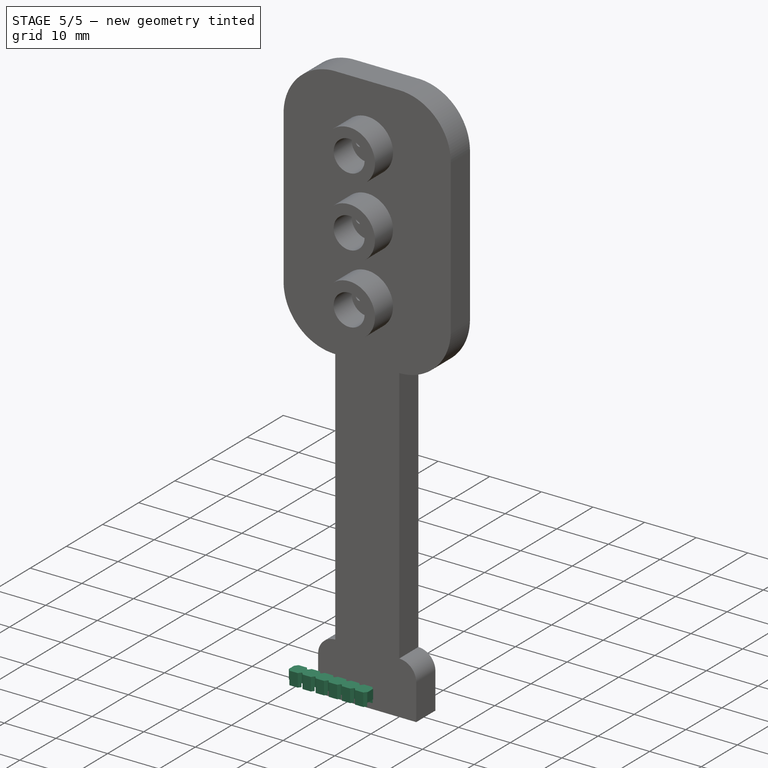
[diagram: stage 5 of 5 — iso view after this stage's code; geometry added in this stage tinted green]
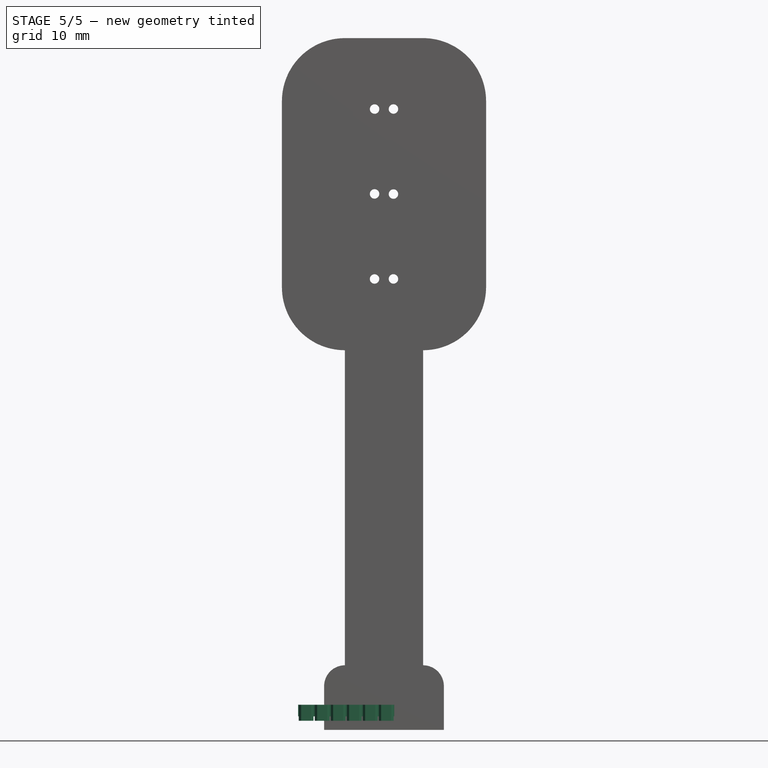
[diagram: stage 5 of 5 — front view after this stage's code; geometry added in this stage tinted green]
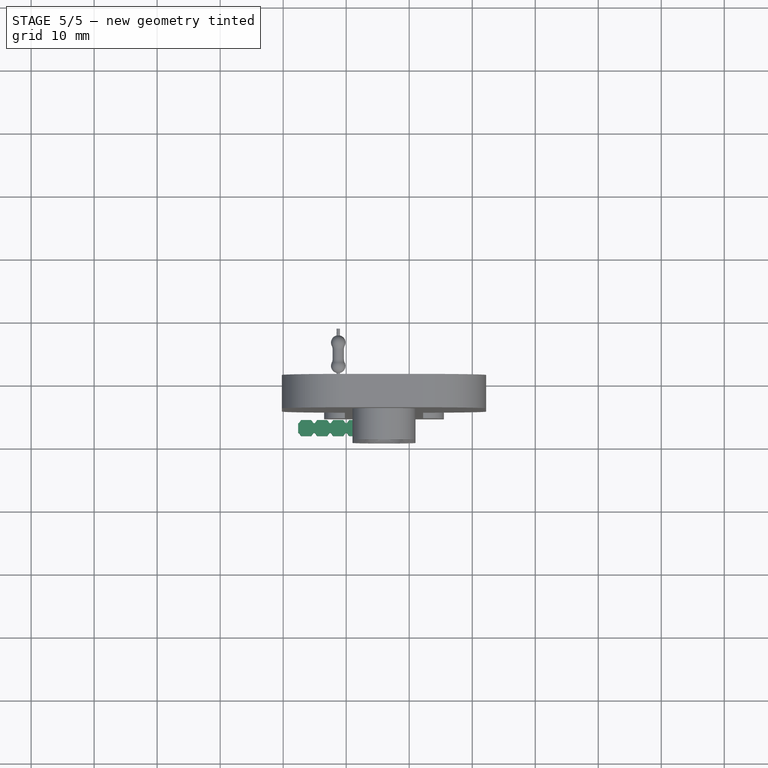
[diagram: stage 5 of 5 — top view after this stage's code; geometry added in this stage tinted green]
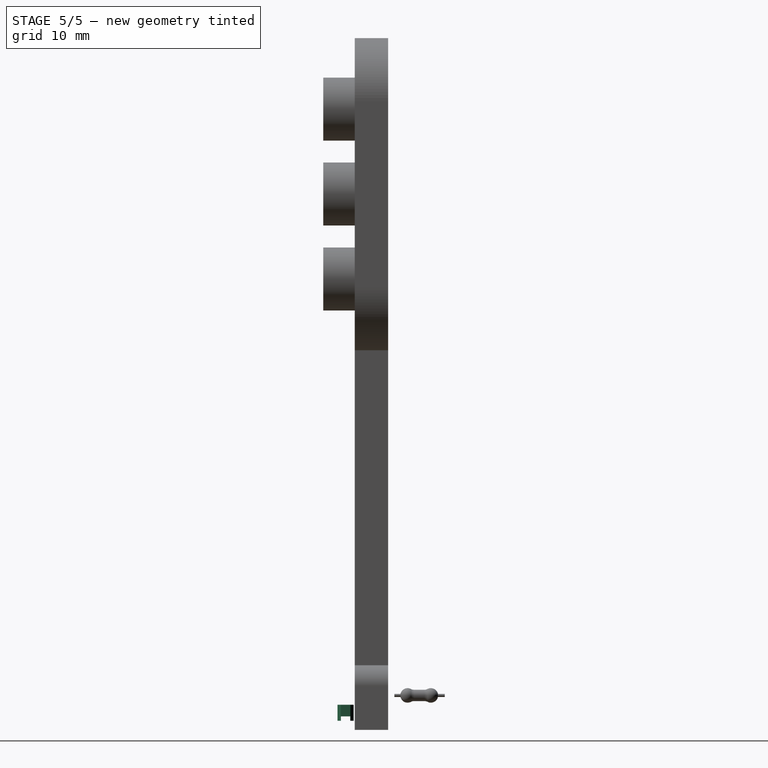
[diagram: stage 5 of 5 — right view after this stage's code; geometry added in this stage tinted green]
FEATURE [Part::Feature] Clone009001  label="Soporte"
  Placement = pos=(1.27,-6.75,1.2) rot=(0,0,1;3.14159rad)
  shape: bbox 5.08 x 2.54 x 2.54 mm, 44 faces, 2 solids (baked)
FEATURE [Part::Feature] Body002001  label="Led rojo"
  Placement = pos=(6,-5,98.3) rot=(0,0,1;3.14159rad)
  shape: bbox 5.425 x 8.65 x 5.85 mm, 7 faces (baked)
FEATURE [Part::Feature] Fusion013001  label="cuerpo"
  shape: bbox 2.3 x 10.64 x 5.304 mm, 13 faces (baked)
FEATURE [Part::Feature] Fusion014001  label="anillos"
  shape: bbox 2.233 x 3.032 x 2.233 mm, 16 faces, 4 solids (baked)
FEATURE [Part::Feature] Clone009002  label="Soporte001"
  Placement = pos=(-3.81,-6.75,1.2) rot=(0,0,1;3.14159rad)
  shape: bbox 5.08 x 2.54 x 2.54 mm, 44 faces, 2 solids (baked)
FEATURE [Part::Feature] Clone009003  label="Soporte002"
  Placement = pos=(6.35,-6.75,1.2) rot=(0,0,1;3.14159rad)
  shape: bbox 5.08 x 2.54 x 2.54 mm, 44 faces, 2 solids (baked)
FEATURE [Part::MultiFuse] Fusion
  Refine = true
  Shapes = -> [Clone009001,Clone009002,Clone009003]
FEATURE [Part::Cylinder] Cylinder003  label="Cilindro"
  Angle = 360
  AttacherType = Attacher::AttachEngine3D
  Height = 9
  Placement = pos=(6.00708,-5.3,98.2717) rot=(1,0,0;1.5708rad)
  Radius = 3
FEATURE [Part::Cylinder] Cylinder004  label="Cilindro003"
  Angle = 360
  AttacherType = Attacher::AttachEngine3D
  Height = 5
  Placement = pos=(6.00708,-5.3,98.2717) rot=(1,0,0;1.5708rad)
  Radius = 5
FEATURE [Part::Cut] Cut016  label="Tapa semaforo"
  Base = -> Cylinder004
  Refine = true
  Tool = -> Cylinder003
FEATURE [Part::MultiFuse] Fusion016004001001003003  label="Cuerpo de semaforo fin"
  Refine = true
  Shapes = -> [Fusion016004001001003002,Fusion016004001001003]
FEATURE [Part::MultiFuse] Fusion016004001001003003002  label="cuerpo001"
  Refine = true
  Shapes = -> [Cut012,Fusion016004001001003003]
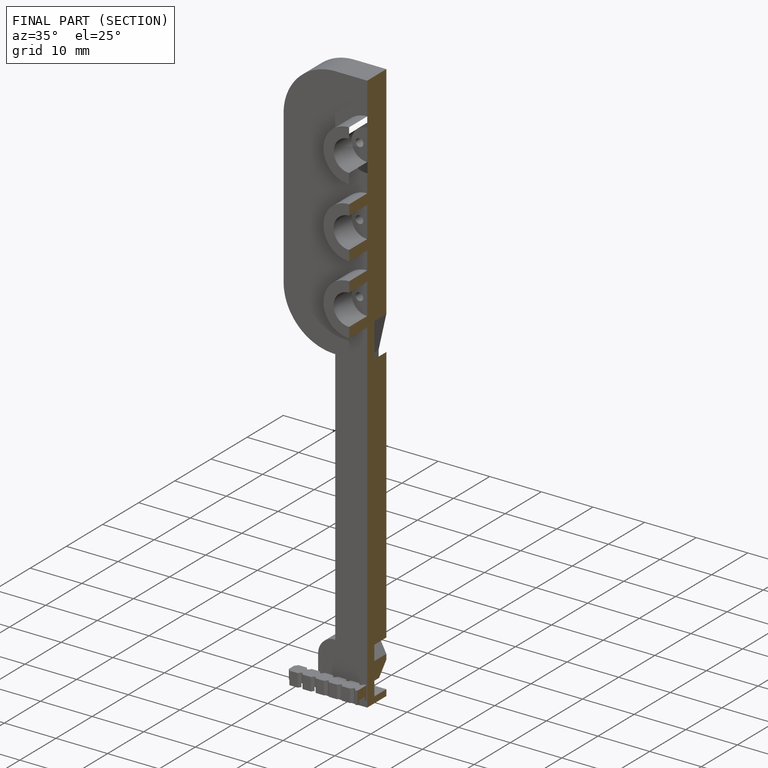
[diagram: finished part — half-section view (interior)]
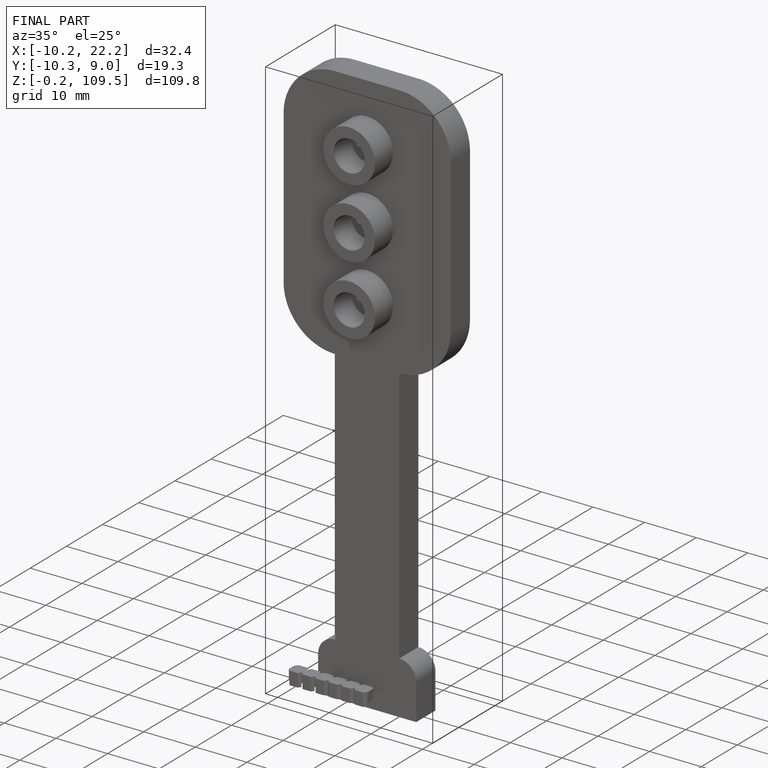
[diagram: finished part — iso view with bounding-box wireframe]
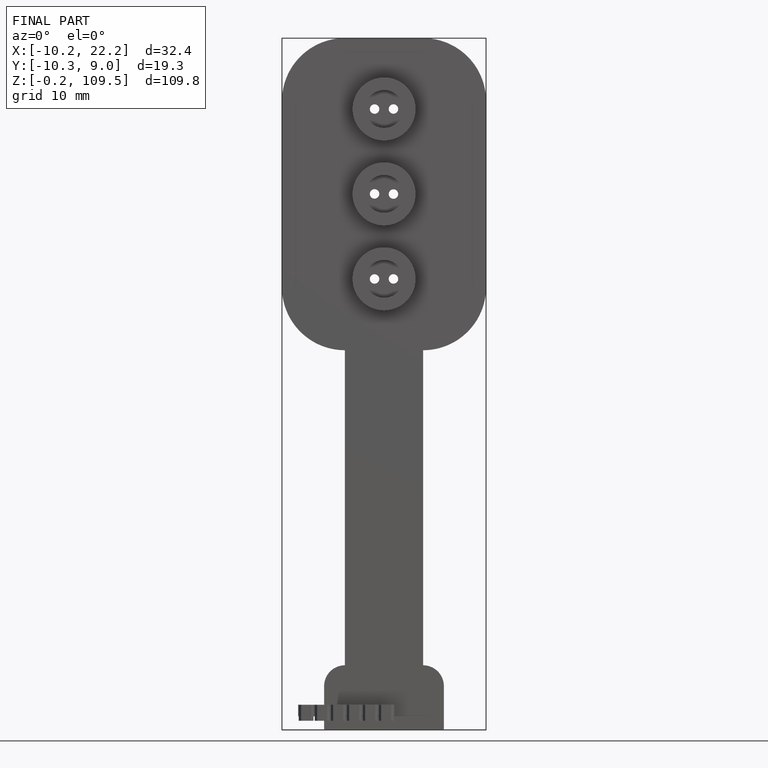
[diagram: finished part — front view with bounding-box wireframe]
